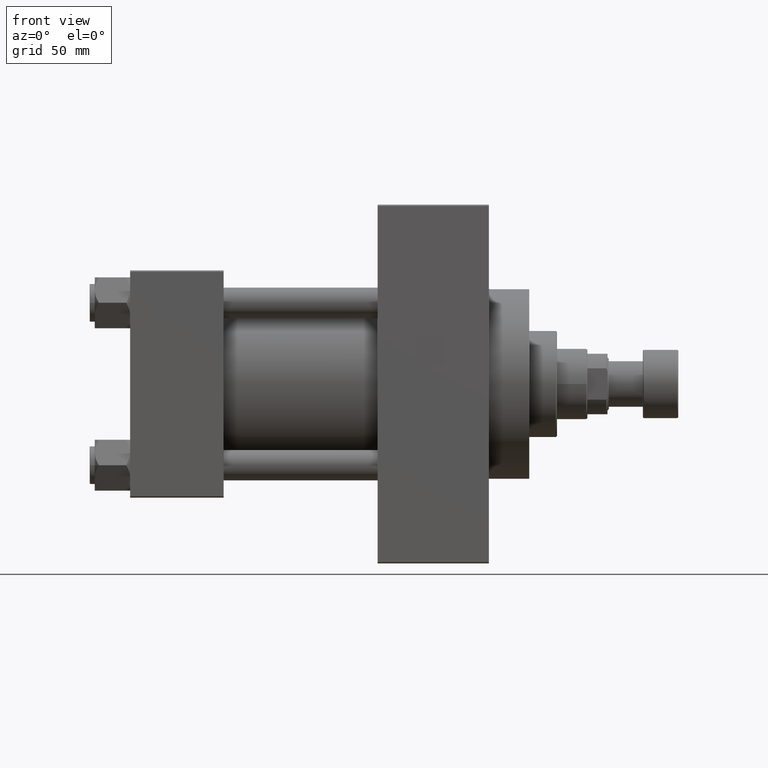
[diagram: clean part render]
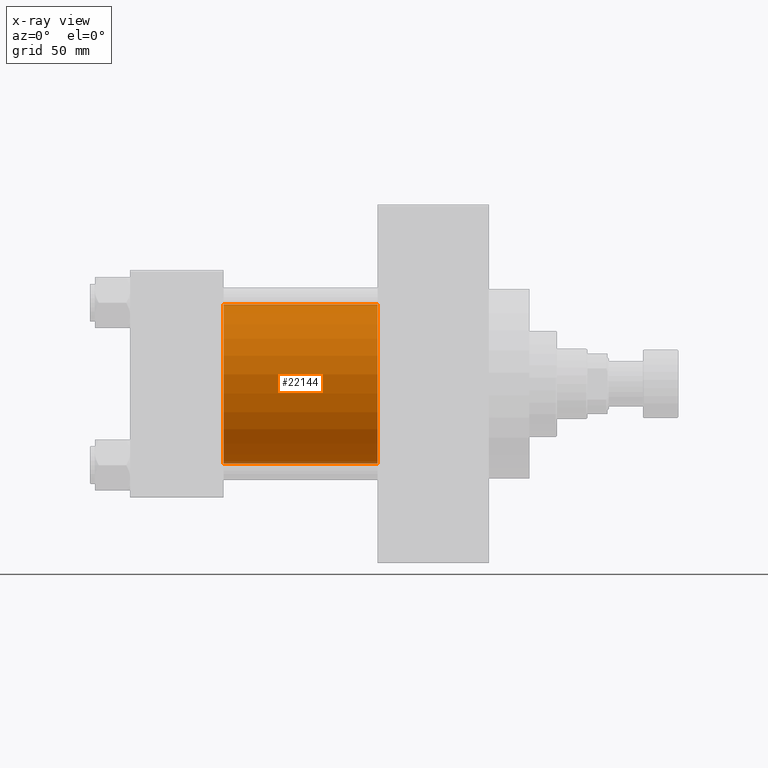
[diagram: x-ray — body ghosted, one internal face saturated and labeled with its STEP entity id]
A machine part, front view, then the same camera in x-ray: the body is ghosted and one INTERNAL B-rep face — a face not visible from any outside direction — is saturated and labeled: STEP entity #22144.
In plain terms, the highlighted cylindrical surface (partial cylindrical patch) has radius 31.5 mm, axis along (-1, -0, -0).
Its self-contained STEP definition (entity closure, byte-faithful):
#230 = DIRECTION ( 'NONE',  ( -1.000000000000000000, -0.000000000000000000, -0.000000000000000000 ) ) ;
#559 = CARTESIAN_POINT ( 'NONE',  ( 98.00000000000000000, -2.602085213965210642E-15, 31.50000000000000000 ) ) ;
#904 = ORIENTED_EDGE ( 'NONE', *, *, #32760, .T. ) ;
#1884 = EDGE_CURVE ( 'NONE', #22184, #3128, #31586, .T. ) ;
#3128 = VERTEX_POINT ( 'NONE', #33243 ) ;
#3668 = CARTESIAN_POINT ( 'NONE',  ( 37.00000000000000000, 1.255552203348951061E-15, -31.50000000000000000 ) ) ;
#4158 = EDGE_CURVE ( 'NONE', #3128, #40163, #37145, .T. ) ;
#5346 = CARTESIAN_POINT ( 'NONE',  ( 98.00000000000000000, -2.602085213965210642E-15, 0.000000000000000000 ) ) ;
#11656 = FACE_OUTER_BOUND ( 'NONE', #30473, .T. ) ;
#12464 = DIRECTION ( 'NONE',  ( -1.000000000000000000, -0.000000000000000000, -0.000000000000000000 ) ) ;
#14835 = VECTOR ( 'NONE', #230, 1000.000000000000000 ) ;
#15563 = ORIENTED_EDGE ( 'NONE', *, *, #1884, .F. ) ;
#16436 = DIRECTION ( 'NONE',  ( 0.000000000000000000, 0.000000000000000000, -1.000000000000000000 ) ) ;
#18583 = VECTOR ( 'NONE', #12464, 1000.000000000000000 ) ;
#22144 = ADVANCED_FACE ( 'NONE', ( #11656 ), #23729, .F. ) ;
#22184 = VERTEX_POINT ( 'NONE', #559 ) ;
#22417 = LINE ( 'NONE', #38732, #14835 ) ;
#23729 = CYLINDRICAL_SURFACE ( 'NONE', #33623, 31.50000000000000000 ) ;
#26282 = AXIS2_PLACEMENT_3D ( 'NONE', #5346, #43820, #16436 ) ;
#27196 = CARTESIAN_POINT ( 'NONE',  ( 37.00000000000000000, -2.602085213965210642E-15, 0.000000000000000000 ) ) ;
#27262 = DIRECTION ( 'NONE',  ( 0.000000000000000000, 0.000000000000000000, 1.000000000000000000 ) ) ;
#27992 = CARTESIAN_POINT ( 'NONE',  ( 98.00000000000000000, -2.602085213965210642E-15, 0.000000000000000000 ) ) ;
#28206 = ORIENTED_EDGE ( 'NONE', *, *, #4158, .F. ) ;
#30473 = EDGE_LOOP ( 'NONE', ( #41647, #904, #28206, #15563 ) ) ;
#30709 = DIRECTION ( 'NONE',  ( 0.000000000000000000, 0.000000000000000000, -1.000000000000000000 ) ) ;
#31268 = CARTESIAN_POINT ( 'NONE',  ( 98.00000000000000000, 1.255552203348951061E-15, -31.50000000000000000 ) ) ;
#31586 = LINE ( 'NONE', #46899, #18583 ) ;
#32323 = AXIS2_PLACEMENT_3D ( 'NONE', #27196, #37517, #30709 ) ;
#32760 = EDGE_CURVE ( 'NONE', #44211, #40163, #22417, .T. ) ;
#33243 = CARTESIAN_POINT ( 'NONE',  ( 37.00000000000000000, -2.602085213965210642E-15, 31.50000000000000000 ) ) ;
#33623 = AXIS2_PLACEMENT_3D ( 'NONE', #27992, #43070, #27262 ) ;
#37145 = CIRCLE ( 'NONE', #32323, 31.50000000000000000 ) ;
#37517 = DIRECTION ( 'NONE',  ( 1.000000000000000000, 0.000000000000000000, 0.000000000000000000 ) ) ;
#38732 = CARTESIAN_POINT ( 'NONE',  ( 98.00000000000000000, 1.255552203348951061E-15, -31.50000000000000000 ) ) ;
#40163 = VERTEX_POINT ( 'NONE', #3668 ) ;
#41438 = EDGE_CURVE ( 'NONE', #22184, #44211, #47945, .T. ) ;
#41647 = ORIENTED_EDGE ( 'NONE', *, *, #41438, .T. ) ;
#43070 = DIRECTION ( 'NONE',  ( -1.000000000000000000, -0.000000000000000000, -0.000000000000000000 ) ) ;
#43820 = DIRECTION ( 'NONE',  ( 1.000000000000000000, 0.000000000000000000, 0.000000000000000000 ) ) ;
#44211 = VERTEX_POINT ( 'NONE', #31268 ) ;
#46899 = CARTESIAN_POINT ( 'NONE',  ( 98.00000000000000000, -2.602085213965210642E-15, 31.50000000000000000 ) ) ;
#47945 = CIRCLE ( 'NONE', #26282, 31.50000000000000000 ) ;